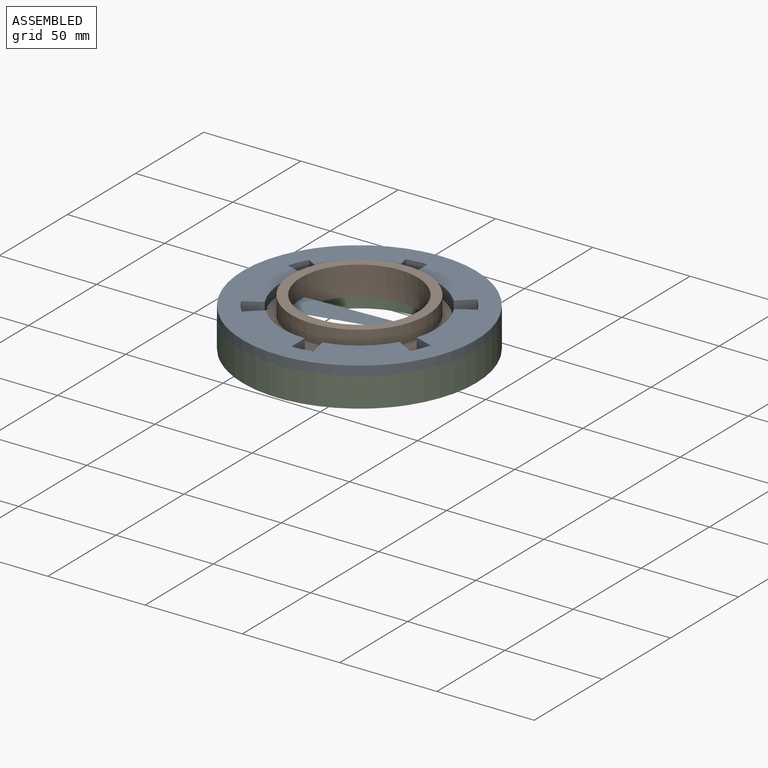
[diagram: assembled view]
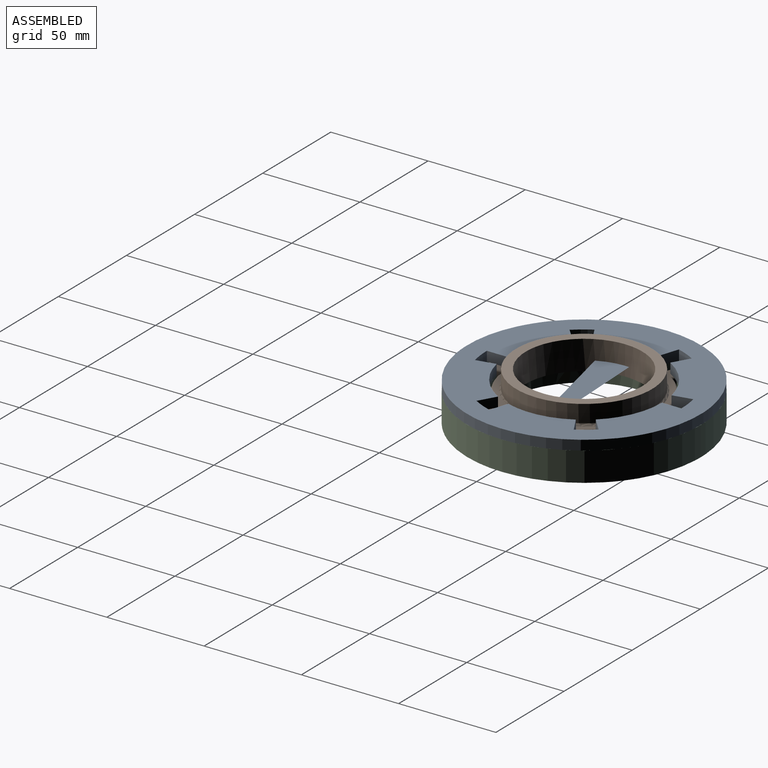
[diagram: assembled view, second angle]
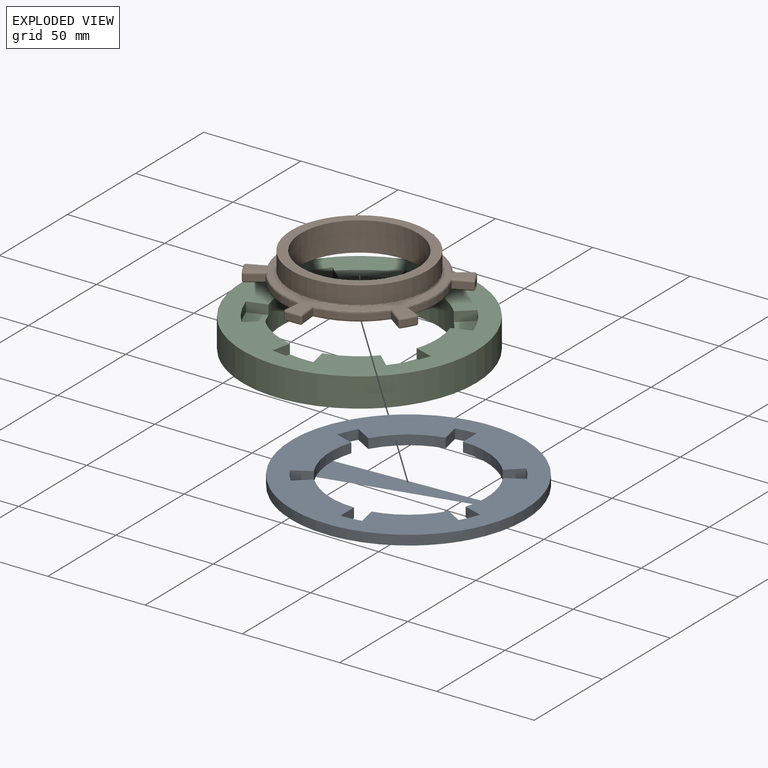
[diagram: exploded view]
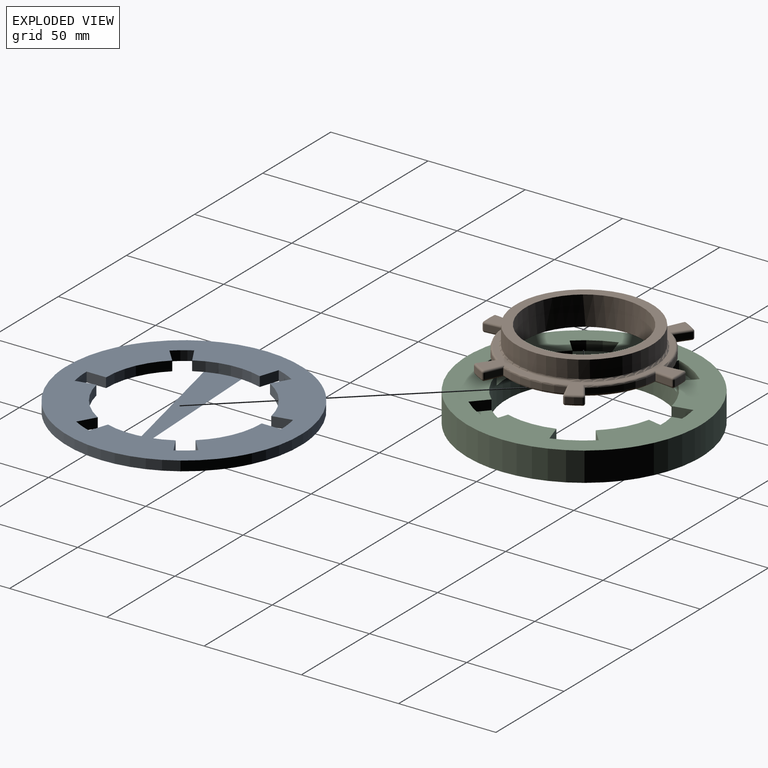
[diagram: exploded view, second angle]
ASSEMBLY  parts=3 mates=5
PART A: 27 faces, bbox 120x122.2x5 mm
  f0: cylinder r=60mm len=120mm, axis (0,0,1), area 1885mm2, adj f23,f25
  f1: cylinder r=40mm len=32.54mm, axis (0,0,1), area 167.6mm2, adj f2,f22,f23,f25
  f2: plane 9.14x5mm, normal (-0.41,-0.91,0), area 50mm2, adj f1,f3,f23,f25
  f3: cylinder r=50mm len=9.05mm, axis (0,0,-1), area 52.4mm2, adj f2,f4,f23,f25
  f4: plane 8.09x5.88mm, normal (0.59,0.81,0), area 50mm2, adj f3,f5,f23,f25
  f5: cylinder r=40mm len=28.18mm, axis (0,0,1), area 167.6mm2, adj f4,f6,f23,f25
  f6: plane 9.95x5mm, normal (-0.99,-0.1,0), area 50mm2, adj f5,f7,f23,f25
  f7: cylinder r=50mm len=10.45mm, axis (0,0,-1), area 52.4mm2, adj f6,f8,f23,f25
  f8: plane 9.95x5mm, normal (0.99,-0.1,0), area 50mm2, adj f7,f9,f23,f25
  f9: cylinder r=40mm len=28.18mm, axis (0,0,1), area 167.6mm2, adj f8,f10,f23,f25
  f10: plane 8.09x5.88mm, normal (-0.59,0.81,0), area 50mm2, adj f9,f11,f23,f25
  f11: cylinder r=50mm len=9.05mm, axis (0,0,-1), area 52.4mm2, adj f10,f12,f23,f25
  f12: plane 9.14x5mm, normal (0.41,-0.91,0), area 50mm2, adj f11,f13,f23,f25
  f13: cylinder r=40mm len=32.54mm, axis (0,0,1), area 167.6mm2, adj f12,f14,f23,f25
  f14: plane 9.14x5mm, normal (0.41,0.91,0), area 50mm2, adj f13,f15,f23,f25
  f15: cylinder r=50mm len=9.05mm, axis (0,0,-1), area 52.4mm2, adj f14,f16,f23,f25
  f16: plane 8.09x5.88mm, normal (-0.59,-0.81,0), area 50mm2, adj f15,f17,f23,f25
  f17: cylinder r=40mm len=28.18mm, axis (0,0,1), area 167.6mm2, adj f16,f18,f23,f25
  f18: plane 9.95x5mm, normal (0.99,0.1,0), area 50mm2, adj f17,f19,f23,f25
  f19: cylinder r=50mm len=10.45mm, axis (0,0,-1), area 52.4mm2, adj f18,f20,f23,f25
  f20: plane 9.95x5mm, normal (-0.99,0.1,0), area 50mm2, adj f19,f21,f23,f25
  f21: cylinder r=40mm len=28.18mm, axis (0,0,1), area 167.6mm2, adj f20,f23,f24,f25
  f22: plane 9.14x5mm, normal (-0.41,0.91,0), area 50mm2, adj f1,f23,f25,f26
  f23: plane 122.22x120mm, normal (0,0,-1), area 11372.5mm2, adj f0,f1,f2,f3,f4,f5,f6,f7
  f24: plane 8.09x5.88mm, normal (0.59,-0.81,0), area 50mm2, adj f21,f23,f25,f26
  f25: plane 122.22x120mm, normal (0,0,1), area 5717.6mm2, adj f0,f1,f2,f3,f4,f5,f6,f7
  f26: cylinder r=50mm len=9.05mm, axis (0,0,-1), area 52.4mm2, adj f22,f23,f24,f25
PART B: 114 faces, bbox 89.5x99x15 mm
  f0: sphere r=1mm, area 1.2mm2, adj f12,f13,f14
  f1: sphere r=1mm, area 1.2mm2, adj f16,f17,f18
  f2: sphere r=1mm, area 1.2mm2, adj f18,f19,f20
  f3: sphere r=1mm, area 1.2mm2, adj f22,f23,f24
  f4: sphere r=1mm, area 1.2mm2, adj f24,f25,f26
  f5: sphere r=1mm, area 1.2mm2, adj f28,f29,f30
  f6: sphere r=1mm, area 1.2mm2, adj f30,f31,f32
  f7: sphere r=1mm, area 1.2mm2, adj f34,f35,f36
  f8: sphere r=1mm, area 1.2mm2, adj f36,f37,f38
  f9: sphere r=1mm, area 1.2mm2, adj f40,f41,f42
  f10: sphere r=1mm, area 1.2mm2, adj f42,f43,f44
  f11: sphere r=1mm, area 1.2mm2, adj f12,f46,f47
  f12: torus R=48.5mm, axis (0,0,1), area 11.6mm2, adj f0,f11,f48,f49
  f13: cylinder r=1mm len=3mm, axis (0,0,1), area 4.8mm2, adj f0,f49,f50,f51
  f14: cylinder r=1mm len=8.72mm, axis (0.81,0.58,0), area 14.9mm2, adj f0,f15,f48,f51
  f15: torus R=38.5mm, axis (0,0,-1), area 54.2mm2, adj f14,f16,f48,f52
  f16: cylinder r=1mm len=10.05mm, axis (-0.1,-1,0), area 14.9mm2, adj f1,f15,f48,f53
  f17: cylinder r=1mm len=3mm, axis (0,0,1), area 4.8mm2, adj f1,f53,f54,f55
  f18: torus R=48.5mm, axis (0,0,1), area 11.6mm2, adj f1,f2,f48,f55
  f19: cylinder r=1mm len=3mm, axis (0,0,1), area 4.8mm2, adj f2,f55,f56,f57
  f20: cylinder r=1mm len=10.05mm, axis (-0.1,1,0), area 14.9mm2, adj f2,f21,f48,f57
  f21: torus R=38.5mm, axis (0,0,-1), area 54.2mm2, adj f20,f22,f48,f58
  f22: cylinder r=1mm len=8.72mm, axis (0.81,-0.58,0), area 14.9mm2, adj f3,f21,f48,f59
  f23: cylinder r=1mm len=3mm, axis (0,0,1), area 4.8mm2, adj f3,f59,f60,f61
  f24: torus R=48.5mm, axis (0,0,1), area 11.6mm2, adj f3,f4,f48,f61
  f25: cylinder r=1mm len=3mm, axis (0,0,1), area 4.8mm2, adj f4,f61,f62,f63
  f26: cylinder r=1mm len=9.52mm, axis (-0.91,0.41,0), area 14.9mm2, adj f4,f27,f48,f63
  f27: torus R=38.5mm, axis (0,0,-1), area 54.2mm2, adj f26,f28,f48,f64
  f28: cylinder r=1mm len=9.52mm, axis (0.91,0.41,0), area 14.9mm2, adj f5,f27,f48,f65
  f29: cylinder r=1mm len=3mm, axis (0,0,1), area 4.8mm2, adj f5,f65,f66,f67
  f30: torus R=48.5mm, axis (0,0,1), area 11.6mm2, adj f5,f6,f48,f67
  f31: cylinder r=1mm len=3mm, axis (0,0,1), area 4.8mm2, adj f6,f67,f68,f69
  f32: cylinder r=1mm len=8.72mm, axis (-0.81,-0.58,0), area 14.9mm2, adj f6,f33,f48,f69
  f33: torus R=38.5mm, axis (0,0,-1), area 54.2mm2, adj f32,f34,f48,f70
  f34: cylinder r=1mm len=10.05mm, axis (0.1,1,0), area 14.9mm2, adj f7,f33,f48,f71
  f35: cylinder r=1mm len=3mm, axis (0,0,1), area 4.8mm2, adj f7,f71,f72,f73
  f36: torus R=48.5mm, axis (0,0,1), area 11.6mm2, adj f7,f8,f48,f73
  f37: cylinder r=1mm len=3mm, axis (0,0,1), area 4.8mm2, adj f8,f73,f74,f75
  f38: cylinder r=1mm len=10.05mm, axis (0.1,-1,0), area 14.9mm2, adj f8,f39,f48,f75
  f39: torus R=38.5mm, axis (0,0,-1), area 54.2mm2, adj f38,f40,f48,f76
  f40: cylinder r=1mm len=8.72mm, axis (-0.81,0.58,0), area 14.9mm2, adj f9,f39,f48,f77
  f41: cylinder r=1mm len=3mm, axis (0,0,1), area 4.8mm2, adj f9,f77,f78,f79
  f42: torus R=48.5mm, axis (0,0,1), area 11.6mm2, adj f9,f10,f48,f79
  f43: cylinder r=1mm len=3mm, axis (0,0,1), area 4.8mm2, adj f10,f79,f80,f81
  f44: cylinder r=1mm len=9.52mm, axis (0.91,-0.41,0), area 14.9mm2, adj f10,f45,f48,f81
  f45: torus R=38.5mm, axis (0,0,-1), area 54.2mm2, adj f44,f46,f48,f82
  f46: cylinder r=1mm len=9.52mm, axis (-0.91,-0.41,0), area 14.9mm2, adj f11,f45,f48,f83
  f47: cylinder r=1mm len=3mm, axis (0,0,1), area 4.8mm2, adj f11,f49,f83,f84
  f48: plane 97.02x87.42mm, normal (0,0,-1), area 2210.3mm2, adj f12,f14,f15,f16,f18,f20,f21,f22
  f49: cylinder r=49.5mm len=6.46mm, axis (0,0,1), area 22.4mm2, adj f12,f13,f47,f86
  f50: sphere r=1mm, area 1.2mm2, adj f13,f86,f87
  f51: plane 7.32x5.22mm, normal (0.58,-0.81,0), area 27mm2, adj f13,f14,f52,f87
  f52: cylinder r=39.5mm len=28.37mm, axis (0,0,1), area 101.3mm2, adj f15,f51,f53,f88
  f53: plane 8.95x3mm, normal (-1,0.1,0), area 27mm2, adj f16,f17,f52,f89
  f54: sphere r=1mm, area 1.2mm2, adj f17,f89,f90
  f55: cylinder r=49.5mm len=7.46mm, axis (0,0,1), area 22.4mm2, adj f17,f18,f19,f90
  f56: sphere r=1mm, area 1.2mm2, adj f19,f90,f91
  f57: plane 8.95x3mm, normal (1,0.1,0), area 27mm2, adj f19,f20,f58,f91
  f58: cylinder r=39.5mm len=28.37mm, axis (0,0,1), area 101.3mm2, adj f21,f57,f59,f92
  f59: plane 7.32x5.22mm, normal (-0.58,-0.81,0), area 27mm2, adj f22,f23,f58,f93
  f60: sphere r=1mm, area 1.2mm2, adj f23,f93,f94
  f61: cylinder r=49.5mm len=6.46mm, axis (0,0,1), area 22.4mm2, adj f23,f24,f25,f94
  f62: sphere r=1mm, area 1.2mm2, adj f25,f94,f95
  f63: plane 8.18x3.73mm, normal (0.41,0.91,0), area 27mm2, adj f25,f26,f64,f95
  f64: cylinder r=39.5mm len=32.76mm, axis (0,0,1), area 101.3mm2, adj f27,f63,f65,f96
  f65: plane 8.18x3.73mm, normal (0.41,-0.91,0), area 27mm2, adj f28,f29,f64,f97
  f66: sphere r=1mm, area 1.2mm2, adj f29,f97,f98
  f67: cylinder r=49.5mm len=6.46mm, axis (0,0,1), area 22.4mm2, adj f29,f30,f31,f98
  f68: sphere r=1mm, area 1.2mm2, adj f31,f98,f99
  f69: plane 7.32x5.22mm, normal (-0.58,0.81,0), area 27mm2, adj f31,f32,f70,f99
  f70: cylinder r=39.5mm len=28.37mm, axis (0,0,1), area 101.3mm2, adj f33,f69,f71,f100
  f71: plane 8.95x3mm, normal (1,-0.1,0), area 27mm2, adj f34,f35,f70,f101
  f72: sphere r=1mm, area 1.2mm2, adj f35,f101,f102
  f73: cylinder r=49.5mm len=7.46mm, axis (0,0,1), area 22.4mm2, adj f35,f36,f37,f102
  f74: sphere r=1mm, area 1.2mm2, adj f37,f102,f103
  f75: plane 8.95x3mm, normal (-1,-0.1,0), area 27mm2, adj f37,f38,f76,f103
  f76: cylinder r=39.5mm len=28.37mm, axis (0,0,1), area 101.3mm2, adj f39,f75,f77,f104
  f77: plane 7.32x5.22mm, normal (0.58,0.81,0), area 27mm2, adj f40,f41,f76,f105
  f78: sphere r=1mm, area 1.2mm2, adj f41,f105,f106
  f79: cylinder r=49.5mm len=6.46mm, axis (0,0,1), area 22.4mm2, adj f41,f42,f43,f106
  f80: sphere r=1mm, area 1.2mm2, adj f43,f106,f107
  f81: plane 8.18x3.73mm, normal (-0.41,-0.91,0), area 27mm2, adj f43,f44,f82,f107
  f82: cylinder r=39.5mm len=32.76mm, axis (0,0,1), area 101.3mm2, adj f45,f81,f83,f108
  f83: plane 8.18x3.73mm, normal (-0.41,0.91,0), area 27mm2, adj f46,f47,f82,f109
  f84: sphere r=1mm, area 1.2mm2, adj f47,f86,f109
  f85: cylinder r=30mm len=60mm, axis (0,0,-1), area 2827.4mm2, adj f48,f110
  f86: torus R=48.5mm, axis (0,0,1), area 11.6mm2, adj f49,f50,f84,f111
  f87: cylinder r=1mm len=8.72mm, axis (0.81,0.58,0), area 14.9mm2, adj f50,f51,f88,f111
  f88: torus R=38.5mm, axis (0,0,1), area 54.2mm2, adj f52,f87,f89,f111
  f89: cylinder r=1mm len=10.05mm, axis (-0.1,-1,0), area 14.9mm2, adj f53,f54,f88,f111
  f90: torus R=48.5mm, axis (0,0,1), area 11.6mm2, adj f54,f55,f56,f111
  f91: cylinder r=1mm len=10.05mm, axis (-0.1,1,0), area 14.9mm2, adj f56,f57,f92,f111
  f92: torus R=38.5mm, axis (0,0,1), area 54.2mm2, adj f58,f91,f93,f111
  f93: cylinder r=1mm len=8.72mm, axis (0.81,-0.58,0), area 14.9mm2, adj f59,f60,f92,f111
  f94: torus R=48.5mm, axis (0,0,1), area 11.6mm2, adj f60,f61,f62,f111
  f95: cylinder r=1mm len=9.52mm, axis (-0.91,0.41,0), area 14.9mm2, adj f62,f63,f96,f111
  f96: torus R=38.5mm, axis (0,0,1), area 54.2mm2, adj f64,f95,f97,f111
  f97: cylinder r=1mm len=9.52mm, axis (0.91,0.41,0), area 14.9mm2, adj f65,f66,f96,f111
  f98: torus R=48.5mm, axis (0,0,1), area 11.6mm2, adj f66,f67,f68,f111
  f99: cylinder r=1mm len=8.72mm, axis (-0.81,-0.58,0), area 14.9mm2, adj f68,f69,f100,f111
  f100: torus R=38.5mm, axis (0,0,1), area 54.2mm2, adj f70,f99,f101,f111
  f101: cylinder r=1mm len=10.05mm, axis (0.1,1,0), area 14.9mm2, adj f71,f72,f100,f111
  f102: torus R=48.5mm, axis (0,0,1), area 11.6mm2, adj f72,f73,f74,f111
  f103: cylinder r=1mm len=10.05mm, axis (0.1,-1,0), area 14.9mm2, adj f74,f75,f104,f111
  f104: torus R=38.5mm, axis (0,0,1), area 54.2mm2, adj f76,f103,f105,f111
  f105: cylinder r=1mm len=8.72mm, axis (-0.81,0.58,0), area 14.9mm2, adj f77,f78,f104,f111
  f106: torus R=48.5mm, axis (0,0,1), area 11.6mm2, adj f78,f79,f80,f111
  f107: cylinder r=1mm len=9.52mm, axis (0.91,-0.41,0), area 14.9mm2, adj f80,f81,f108,f111
  f108: torus R=38.5mm, axis (0,0,1), area 54.2mm2, adj f82,f107,f109,f111
  f109: cylinder r=1mm len=9.52mm, axis (-0.91,-0.41,0), area 14.9mm2, adj f83,f84,f108,f111
  f110: plane 71.3x70mm, normal (0,0,1), area 1021mm2, adj f85,f112
  f111: plane 97.02x87.42mm, normal (0,0,1), area 966.2mm2, adj f86,f87,f88,f89,f90,f91,f92,f93
  f112: cylinder r=35mm len=70mm, axis (0,0,1), area 1979.2mm2, adj f110,f113
  f113: torus R=36mm, axis (0,0,-1), area 349mm2, adj f111,f112
PART C: 28 faces, bbox 120x122.2x15 mm
  f0: plane 21.1x17.83mm, normal (0,0,1), area 188.5mm2, adj f7,f8,f9,f22
  f1: plane 20.79x10.88mm, normal (0,0,1), area 188.5mm2, adj f10,f11,f12,f22
  f2: plane 122.22x120mm, normal (0,0,-1), area 11938mm2, adj f6,f22
  f3: plane 21.1x17.83mm, normal (0,0,1), area 188.5mm2, adj f13,f14,f15,f22
  f4: plane 21.1x17.83mm, normal (0,0,1), area 188.5mm2, adj f16,f17,f18,f22
  f5: plane 20.79x10.88mm, normal (0,0,1), area 188.5mm2, adj f19,f20,f21,f22
  f6: cylinder r=60mm len=120mm, axis (0,0,1), area 5654.9mm2, adj f2,f26
  f7: plane 9.51x5mm, normal (-0.31,-0.95,0), area 50mm2, adj f0,f8,f22,f26
  f8: cylinder r=50mm len=18.01mm, axis (0,0,-1), area 104.7mm2, adj f0,f7,f9,f26
  f9: plane 7.43x6.69mm, normal (0.67,0.74,0), area 50mm2, adj f0,f8,f22,f26
  f10: plane 9.78x5mm, normal (-0.98,-0.21,0), area 50mm2, adj f1,f11,f22,f26
  f11: cylinder r=50mm len=20.79mm, axis (0,0,-1), area 104.7mm2, adj f1,f10,f12,f26
  f12: plane 9.78x5mm, normal (0.98,-0.21,0), area 50mm2, adj f1,f11,f22,f26
  f13: plane 7.43x6.69mm, normal (-0.67,0.74,0), area 50mm2, adj f3,f14,f22,f26
  f14: cylinder r=50mm len=18.01mm, axis (0,0,-1), area 104.7mm2, adj f3,f13,f15,f26
  f15: plane 9.51x5mm, normal (0.31,-0.95,0), area 50mm2, adj f3,f14,f22,f26
  f16: plane 9.51x5mm, normal (0.31,0.95,0), area 50mm2, adj f4,f17,f22,f26
  f17: cylinder r=50mm len=18.01mm, axis (0,0,-1), area 104.7mm2, adj f4,f16,f18,f26
  f18: plane 7.43x6.69mm, normal (-0.67,-0.74,0), area 50mm2, adj f4,f17,f22,f26
  f19: plane 9.78x5mm, normal (0.98,0.21,0), area 50mm2, adj f5,f20,f22,f26
  f20: cylinder r=50mm len=20.79mm, axis (0,0,-1), area 104.7mm2, adj f5,f19,f21,f26
  f21: plane 9.78x5mm, normal (-0.98,0.21,0), area 50mm2, adj f5,f20,f22,f26
  f22: cylinder r=40mm len=80mm, axis (0,0,1), area 3267.3mm2, adj f0,f1,f2,f3,f4,f5,f7,f9
  f23: plane 9.51x5mm, normal (-0.31,0.95,0), area 50mm2, adj f22,f24,f26,f27
  f24: plane 21.1x17.83mm, normal (0,0,1), area 188.5mm2, adj f22,f23,f25,f27
  f25: plane 7.43x6.69mm, normal (0.67,-0.74,0), area 50mm2, adj f22,f24,f26,f27
  f26: plane 122.22x120mm, normal (0,0,1), area 5152.2mm2, adj f6,f7,f8,f9,f10,f11,f12,f13
  f27: cylinder r=50mm len=18.01mm, axis (0,0,-1), area 104.7mm2, adj f23,f24,f25,f26
PLACE A rot(axis=(0,0,1),6deg) t=(-19.53,-43.37,7.73)mm
PLACE B t=(-19.53,-43.37,2.73)mm
PLACE C t=(-19.53,-43.37,-7.27)mm fixed
MATE planar A.f10 <-> C.f13  axis (-0.67,0.74,0) through (-52.97,-73.48,10.23)mm
MATE slider B.f12 <-> C.f6  axis (0,0,1) through (-19.53,-43.37,13.23)mm
MATE revolute B.f12 <-> C.f6  axis (0,0,1) through (-19.53,-43.37,5.23)mm
MATE cylindrical C.f6 <-> A.f0  axis (0,0,1) through (-19.53,-43.37,0.23)mm
MATE planar C.f26 <-> A.f23  axis (0,0,1) through (40.47,-43.37,7.73)mm
